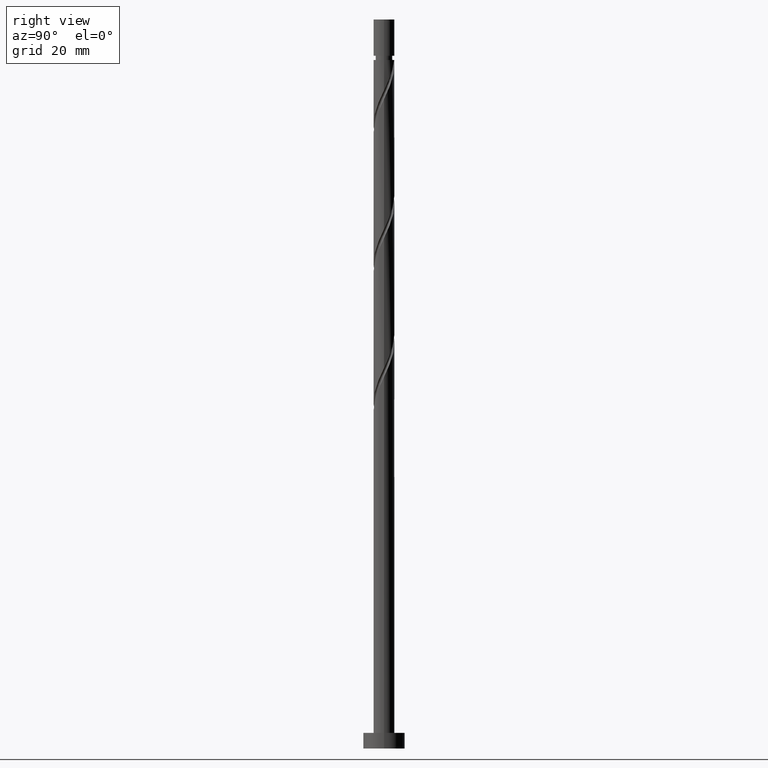
[diagram: clean part render]
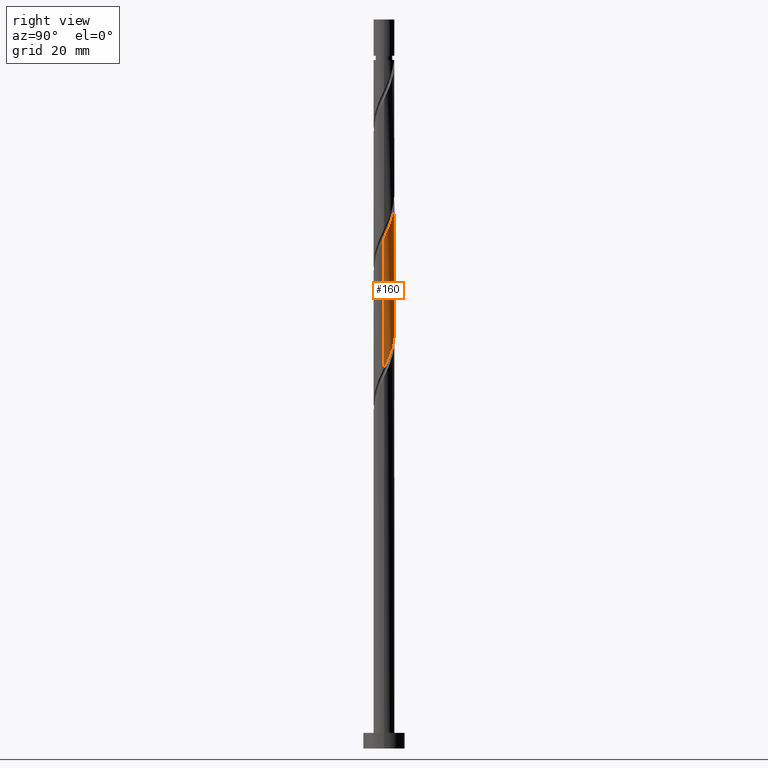
[diagram: same view with one face highlighted and labeled with its STEP entity id]
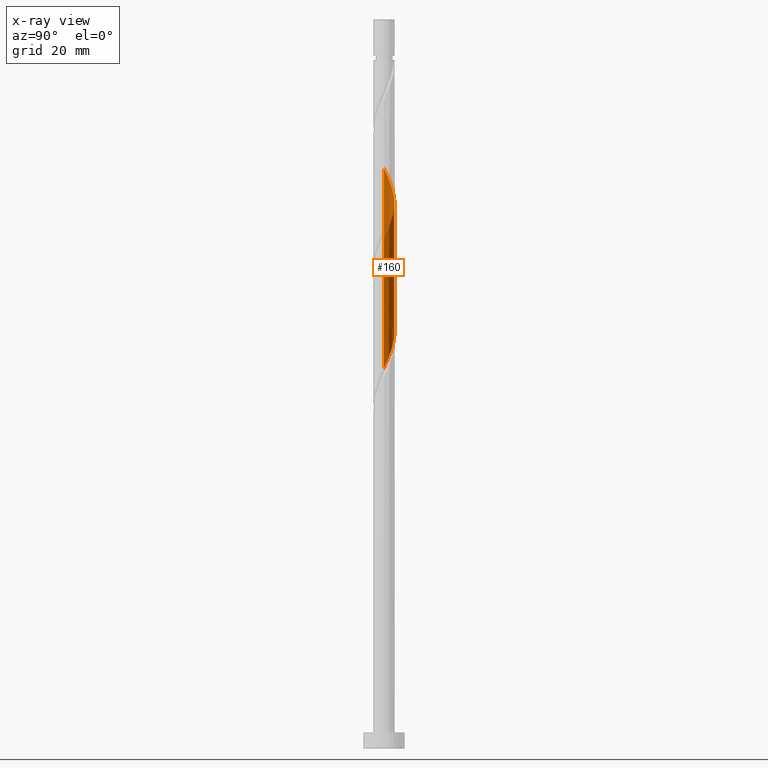
[diagram: x-ray of the same camera — body ghosted, the highlighted face saturated]
A machine part, right view. The second image highlights one B-rep face of the part: STEP entity #160.
The next image is the same camera in x-ray: the body ghosted, the highlighted face saturated — about 0% of this face is hidden behind the body in this view.
In plain terms, the highlighted cylindrical surface (edge-blend (fillet) strip) has radius 2 mm, axis along (-0, -0, -1).
Its self-contained STEP definition (entity closure, byte-faithful):
#7 = EDGE_CURVE ( 'NONE', #1396, #239, #639, .T. ) ;
#18 = CARTESIAN_POINT ( 'NONE',  ( -0.4568343776401052603, 1.968245701812301407, 80.70896606407775664 ) ) ;
#24 = CARTESIAN_POINT ( 'NONE',  ( -2.000000000000000000, 0.000000000000000000, 140.0000000000000000 ) ) ;
#32 = CARTESIAN_POINT ( 'NONE',  ( -1.741900447066340396, 0.9827425057002947550, 109.1938145489262268 ) ) ;
#52 = DIRECTION ( 'NONE',  ( -0.000000000000000000, -0.000000000000000000, -1.000000000000000000 ) ) ;
#55 = CARTESIAN_POINT ( 'NONE',  ( 1.996690616564942733, 0.1150068768444769546, 98.28472363983530613 ) ) ;
#89 = ORIENTED_EDGE ( 'NONE', *, *, #805, .F. ) ;
#142 =( BOUNDED_CURVE ( )  B_SPLINE_CURVE ( 2, ( #657, #1329, #1551, #712, #1231, #296, #791, #154, #1310, #1049, #1180, #18, #538, #545, #414, #1435, #1057, #289, #799, #162, #420, #864, #599, #988, #1498 ),
 .UNSPECIFIED., .F., .T. ) 
 B_SPLINE_CURVE_WITH_KNOTS ( ( 3, 2, 2, 2, 2, 2, 2, 2, 2, 2, 2, 2, 3 ),
 ( 0.6795252162417513286, 0.6818181818181817677, 0.6931818181818182323, 0.7045454545454545858, 0.7159090909090909394, 0.7272727272727272929, 0.7386363636363636465, 0.7500000000000000000, 0.7613636363636363535, 0.7727272727272727071, 0.7840909090909090606, 0.7954545454545454142, 0.8045252162417512176 ),
 .UNSPECIFIED. ) 
 CURVE ( )  GEOMETRIC_REPRESENTATION_ITEM ( )  RATIONAL_B_SPLINE_CURVE ( ( 0.9061101570135572381, 0.9072237824201393463, 0.9090909090909168322, 0.8998376744372191816, 0.9090909090909168322, 0.8998376744372191816, 0.9090909090909168322, 0.8998376744372191816, 0.9090909090909168322, 0.8998376744372191816, 0.9090909090909168322, 0.8998376744372191816, 0.9090909090909168322, 0.8998376744372191816, 0.9090909090909168322, 0.8998376744372191816, 0.9090909090909168322, 0.8998376744372191816, 0.9090909090909168322, 0.8998376744372191816, 0.9090909090909168322, 0.8998376744372191816, 0.9090909090909168322, 0.9017048011079967784, 0.9061101570135571270 ) ) 
 REPRESENTATION_ITEM ( '' )  );
#154 = CARTESIAN_POINT ( 'NONE',  ( -1.448427499289741238, 1.408810338760220660, 83.13320848832017873 ) ) ;
#158 = CARTESIAN_POINT ( 'NONE',  ( 1.883409435608319082, 0.6728810428757550088, 99.49684485195651007 ) ) ;
#159 = CARTESIAN_POINT ( 'NONE',  ( -2.000000000000003109, -4.629136007732132229E-15, 111.3746630999283838 ) ) ;
#160 = ADVANCED_FACE ( 'NONE', ( #191 ), #1094, .T. ) ;
#162 = CARTESIAN_POINT ( 'NONE',  ( 1.600603406160405084, 1.233189980288572851, 75.86048121559288404 ) ) ;
#191 = FACE_OUTER_BOUND ( 'NONE', #1336, .T. ) ;
#202 = CARTESIAN_POINT ( 'NONE',  ( 1.220637884402355322, 1.584311571365226046, 101.9210872761989179 ) ) ;
#211 = CARTESIAN_POINT ( 'NONE',  ( 0.9928482695149680737, 1.759812803970230322, 102.5271478822595697 ) ) ;
#239 = VERTEX_POINT ( 'NONE', #1594 ) ;
#267 = DIRECTION ( 'NONE',  ( -0.000000000000000000, -0.000000000000000000, -1.000000000000000000 ) ) ;
#289 = CARTESIAN_POINT ( 'NONE',  ( 1.188337955536408419, 1.634179211325358372, 77.07260242771408798 ) ) ;
#290 = VERTEX_POINT ( 'NONE', #535 ) ;
#296 = CARTESIAN_POINT ( 'NONE',  ( -1.786663747202082098, 0.9436744384215545178, 84.34532970044135425 ) ) ;
#335 = CARTESIAN_POINT ( 'NONE',  ( 1.448427499289744569, 1.408810338760221770, 101.3150266701383373 ) ) ;
#414 = CARTESIAN_POINT ( 'NONE',  ( 0.3979949748426491185, 1.960000000000000409, 78.89078424589590099 ) ) ;
#420 = CARTESIAN_POINT ( 'NONE',  ( 1.741900447066338620, 0.9827425057002935338, 75.25442060953226076 ) ) ;
#436 = EDGE_CURVE ( 'NONE', #1396, #290, #1622, .T. ) ;
#459 = CARTESIAN_POINT ( 'NONE',  ( -1.394470680848408417, 1.433684595806967943, 107.9816933368049945 ) ) ;
#479 = VERTEX_POINT ( 'NONE', #1556 ) ;
#535 = CARTESIAN_POINT ( 'NONE',  ( -2.000000000000003109, -4.629136007732132229E-15, 111.3746630999283838 ) ) ;
#536 = CARTESIAN_POINT ( 'NONE',  ( -1.883197487972274375, 0.7322950311120152156, 109.7998751549868075 ) ) ;
#538 = CARTESIAN_POINT ( 'NONE',  ( -0.1703224295138020539, 1.992734370156875157, 80.10290545801711914 ) ) ;
#545 = CARTESIAN_POINT ( 'NONE',  ( 0.1161895186125009721, 2.017223038501448240, 79.49684485195649586 ) ) ;
#552 = CARTESIAN_POINT ( 'NONE',  ( -2.000000000000005773, 0.2290578547702362411, 110.8887031469570843 ) ) ;
#559 = ORIENTED_EDGE ( 'NONE', *, *, #849, .F. ) ;
#562 = CARTESIAN_POINT ( 'NONE',  ( 2.000000000000003109, 0.05755105304764448343, 98.16342777131328035 ) ) ;
#569 = DIRECTION ( 'NONE',  ( -1.000000000000000000, 0.000000000000000000, 0.000000000000000000 ) ) ;
#597 = VECTOR ( 'NONE', #267, 1000.000000000000000 ) ;
#599 = CARTESIAN_POINT ( 'NONE',  ( 1.948211798543800555, 0.4521844623765068349, 74.04229939741107103 ) ) ;
#639 = LINE ( 'NONE', #1287, #597 ) ;
#657 = CARTESIAN_POINT ( 'NONE',  ( -2.000000000000000888, -3.305457375472719724E-15, 86.40690539186348929 ) ) ;
#690 = CARTESIAN_POINT ( 'NONE',  ( 0.000000000000000000, 0.000000000000000000, 140.0000000000000000 ) ) ;
#712 = CARTESIAN_POINT ( 'NONE',  ( -1.980155124014551626, 0.4020876473299558329, 85.55745091256258661 ) ) ;
#714 = CARTESIAN_POINT ( 'NONE',  ( 0.1703224295138026645, 1.992734370156877377, 104.3453297004413542 ) ) ;
#727 = ORIENTED_EDGE ( 'NONE', *, *, #7, .T. ) ;
#791 = CARTESIAN_POINT ( 'NONE',  ( -1.617545623245911779, 1.176242388590887478, 83.73926909438075938 ) ) ;
#799 = CARTESIAN_POINT ( 'NONE',  ( 1.394470680848406419, 1.433684595806965500, 76.46654182165350733 ) ) ;
#805 = EDGE_CURVE ( 'NONE', #290, #479, #1559, .T. ) ;
#835 = CARTESIAN_POINT ( 'NONE',  ( 1.617545623245913999, 1.176242388590888144, 100.7089660640777282 ) ) ;
#849 = EDGE_CURVE ( 'NONE', #479, #239, #142, .T. ) ;
#864 = CARTESIAN_POINT ( 'NONE',  ( 1.883197487972272377, 0.7322950311120127731, 74.64836000347166589 ) ) ;
#922 = CARTESIAN_POINT ( 'NONE',  ( 2.000000000000003109, 1.742469611957329530E-15, 98.04132976659504095 ) ) ;
#968 = CARTESIAN_POINT ( 'NONE',  ( 0.4568343776401061485, 1.968245701812304072, 103.7392690943807736 ) ) ;
#988 = CARTESIAN_POINT ( 'NONE',  ( 2.000000000000000444, 0.2290578547702464274, 73.55953201150147436 ) ) ;
#1004 = VECTOR ( 'NONE', #1442, 1000.000000000000000 ) ;
#1049 = CARTESIAN_POINT ( 'NONE',  ( -0.9928482695149671855, 1.759812803970228989, 81.92108727619896058 ) ) ;
#1053 = CARTESIAN_POINT ( 'NONE',  ( -1.948211798543802997, 0.4521844623765082782, 110.4059357610474308 ) ) ;
#1057 = CARTESIAN_POINT ( 'NONE',  ( 0.9340691933046023632, 1.768478086411954919, 77.67866303377468284 ) ) ;
#1075 = CARTESIAN_POINT ( 'NONE',  ( 1.786663747202085206, 0.9436744384215546289, 100.1029054580171334 ) ) ;
#1094 = CYLINDRICAL_SURFACE ( 'NONE', #1638, 2.000000000000000000 ) ;
#1096 = CARTESIAN_POINT ( 'NONE',  ( -0.1161895186125005558, 2.017223038501450905, 104.9513903065019633 ) ) ;
#1180 = CARTESIAN_POINT ( 'NONE',  ( -0.7248413235775359453, 1.864029252891264754, 81.31502667013835151 ) ) ;
#1215 = CARTESIAN_POINT ( 'NONE',  ( 2.000000000000003109, 1.742469611957329530E-15, 98.04132976659505516 ) ) ;
#1225 = CARTESIAN_POINT ( 'NONE',  ( -1.188337955536409973, 1.634179211325360814, 107.3756327307444138 ) ) ;
#1231 = CARTESIAN_POINT ( 'NONE',  ( -1.883409435608316418, 0.6728810428757550088, 84.95139030650197753 ) ) ;
#1233 = CARTESIAN_POINT ( 'NONE',  ( -0.3979949748426485634, 1.960000000000002629, 105.5574509125625724 ) ) ;
#1287 = CARTESIAN_POINT ( 'NONE',  ( 2.000000000000000000, 2.449293598294706414E-16, 140.0000000000000000 ) ) ;
#1310 = CARTESIAN_POINT ( 'NONE',  ( -1.220637884402353768, 1.584311571365224047, 82.52714788225954123 ) ) ;
#1329 = CARTESIAN_POINT ( 'NONE',  ( -2.000000000000000888, 0.05755105304764639856, 86.28480738714523568 ) ) ;
#1336 = EDGE_LOOP ( 'NONE', ( #1363, #727, #559, #89 ) ) ;
#1341 = CARTESIAN_POINT ( 'NONE',  ( 1.980155124014553847, 0.4020876473299556109, 98.89078424589595784 ) ) ;
#1349 = CARTESIAN_POINT ( 'NONE',  ( 0.7248413235775367225, 1.864029252891266975, 103.1332084883201645 ) ) ;
#1363 = ORIENTED_EDGE ( 'NONE', *, *, #436, .F. ) ;
#1396 = VERTEX_POINT ( 'NONE', #922 ) ;
#1435 = CARTESIAN_POINT ( 'NONE',  ( 0.6798004310727968624, 1.902776961498552133, 78.28472363983533455 ) ) ;
#1442 = DIRECTION ( 'NONE',  ( -0.000000000000000000, -0.000000000000000000, -1.000000000000000000 ) ) ;
#1479 = CARTESIAN_POINT ( 'NONE',  ( -1.600603406160407083, 1.233189980288574406, 108.5877539428656178 ) ) ;
#1498 = CARTESIAN_POINT ( 'NONE',  ( 2.000000000000000888, 2.901623216478314900E-15, 73.07357205853016069 ) ) ;
#1551 = CARTESIAN_POINT ( 'NONE',  ( -1.996690616564940512, 0.1150068768444774819, 86.16351151862316726 ) ) ;
#1556 = CARTESIAN_POINT ( 'NONE',  ( -2.000000000000000888, -3.305457375472719724E-15, 86.40690539186347507 ) ) ;
#1559 = LINE ( 'NONE', #24, #1004 ) ;
#1583 = CARTESIAN_POINT ( 'NONE',  ( -0.9340691933046031403, 1.768478086411957362, 106.7695721246838048 ) ) ;
#1594 = CARTESIAN_POINT ( 'NONE',  ( 2.000000000000000888, 2.901623216478314900E-15, 73.07357205853016069 ) ) ;
#1602 = CARTESIAN_POINT ( 'NONE',  ( -0.6798004310727973065, 1.902776961498554131, 106.1635115186232099 ) ) ;
#1622 =( BOUNDED_CURVE ( )  B_SPLINE_CURVE ( 2, ( #1215, #562, #55, #1341, #158, #1075, #835, #335, #202, #211, #1349, #968, #714, #1096, #1233, #1602, #1583, #1225, #459, #1479, #32, #536, #1053, #552, #159 ),
 .UNSPECIFIED., .F., .F. ) 
 B_SPLINE_CURVE_WITH_KNOTS ( ( 3, 2, 2, 2, 2, 2, 2, 2, 2, 2, 2, 2, 3 ),
 ( 0.4295252162417512731, 0.4318181818181817677, 0.4431818181818182323, 0.4545454545454545858, 0.4659090909090909394, 0.4772727272727272929, 0.4886363636363636465, 0.5000000000000000000, 0.5113636363636363535, 0.5227272727272727071, 0.5340909090909091717, 0.5454545454545454142, 0.5545252162417517727 ),
 .UNSPECIFIED. ) 
 CURVE ( )  GEOMETRIC_REPRESENTATION_ITEM ( )  RATIONAL_B_SPLINE_CURVE ( ( 0.9061101570135619010, 0.9072237824201440093, 0.9090909090909216062, 0.8998376744372238445, 0.9090909090909216062, 0.8998376744372238445, 0.9090909090909216062, 0.8998376744372238445, 0.9090909090909216062, 0.8998376744372238445, 0.9090909090909216062, 0.8998376744372238445, 0.9090909090909216062, 0.8998376744372238445, 0.9090909090909216062, 0.8998376744372238445, 0.9090909090909216062, 0.8998376744372238445, 0.9090909090909216062, 0.8998376744372238445, 0.9090909090909216062, 0.8998376744372238445, 0.9090909090909216062, 0.9017048011080009973, 0.9061101570135623451 ) ) 
 REPRESENTATION_ITEM ( '' )  );
#1638 = AXIS2_PLACEMENT_3D ( 'NONE', #690, #52, #569 ) ;